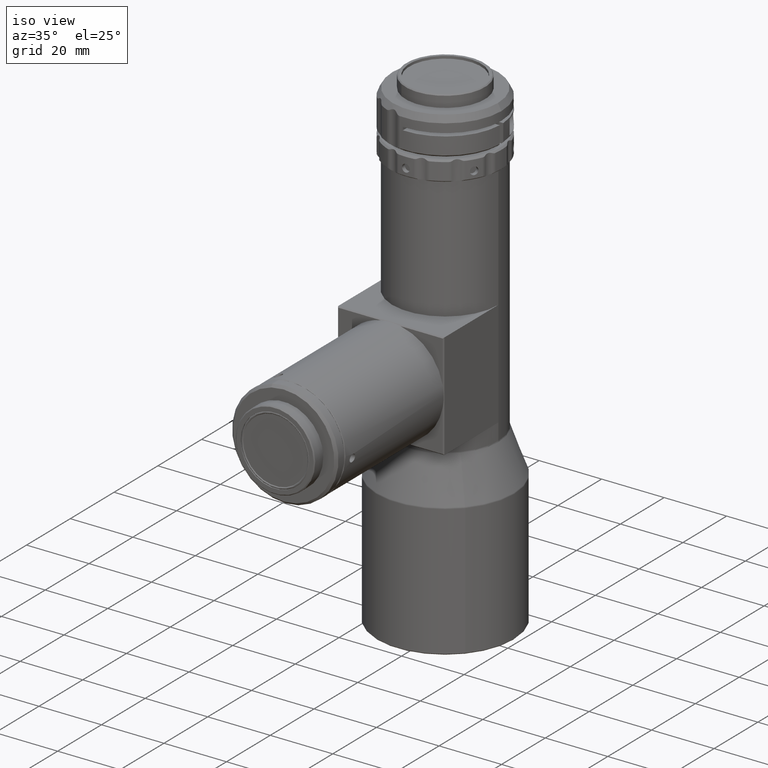
[diagram: clean part render]
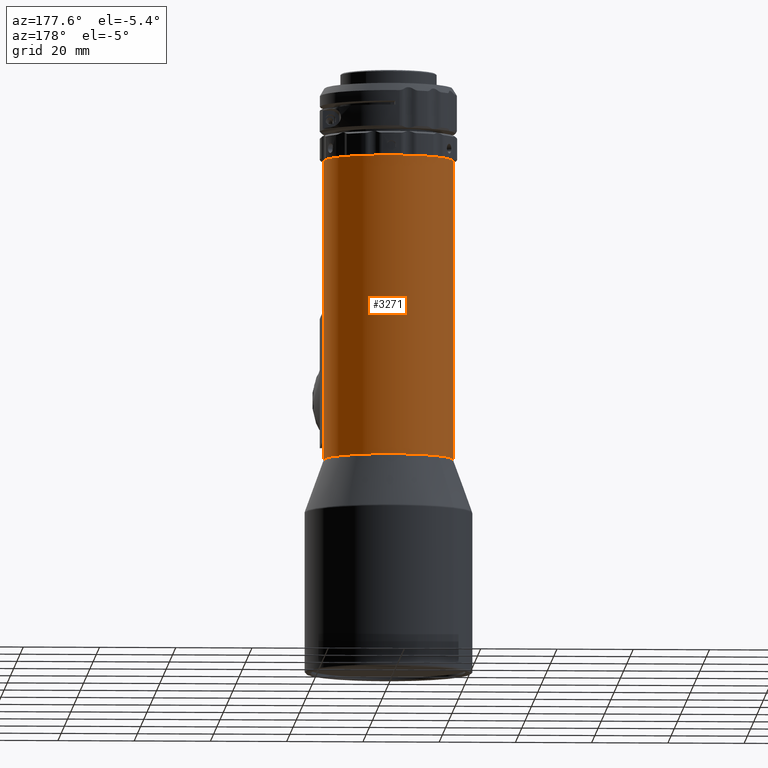
[diagram: tour spotlight — one face highlighted and labeled with its STEP entity id]
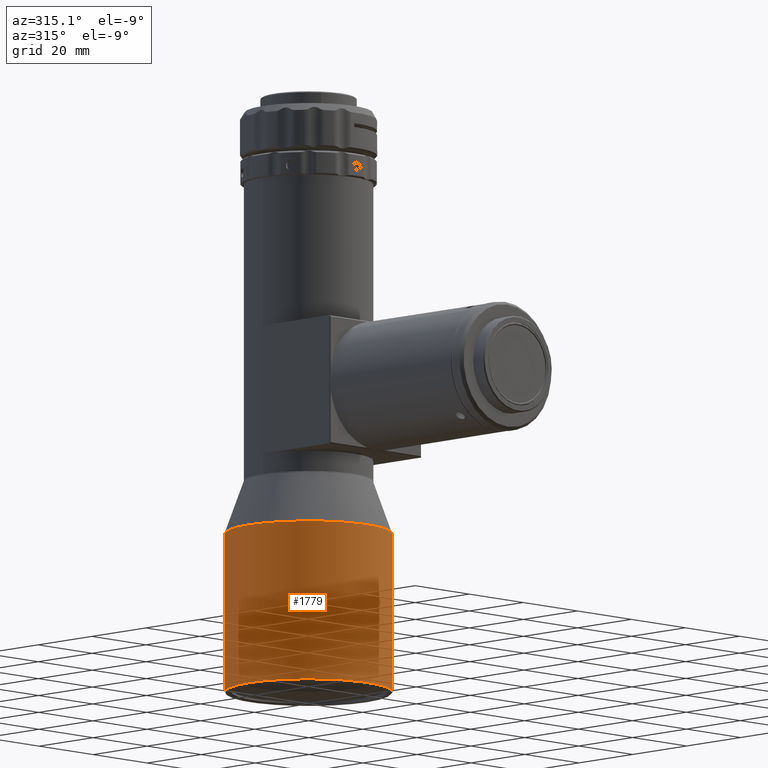
[diagram: tour spotlight — one face highlighted and labeled with its STEP entity id]
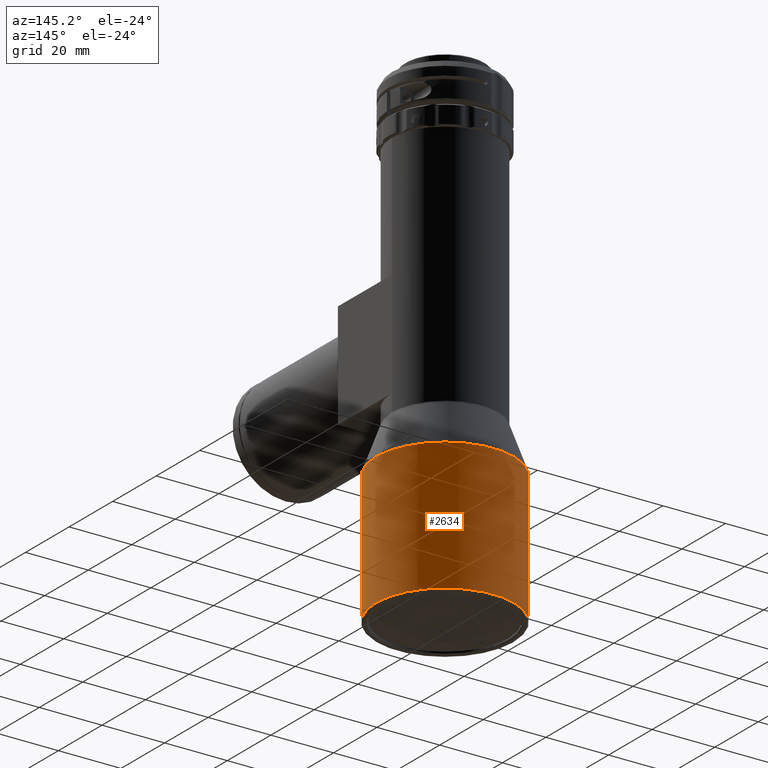
[diagram: tour spotlight — one face highlighted and labeled with its STEP entity id]
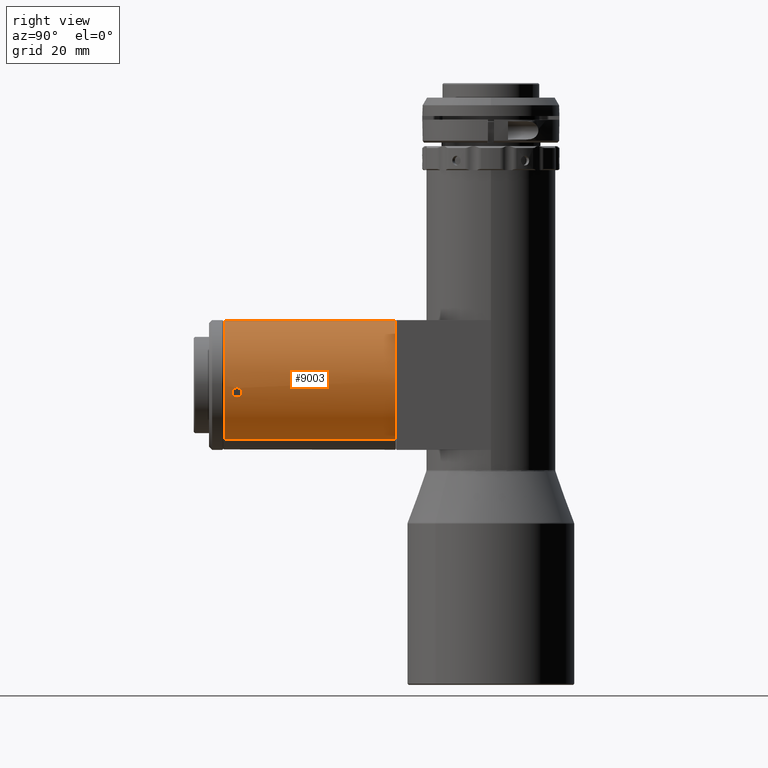
[diagram: tour spotlight — one face highlighted and labeled with its STEP entity id]
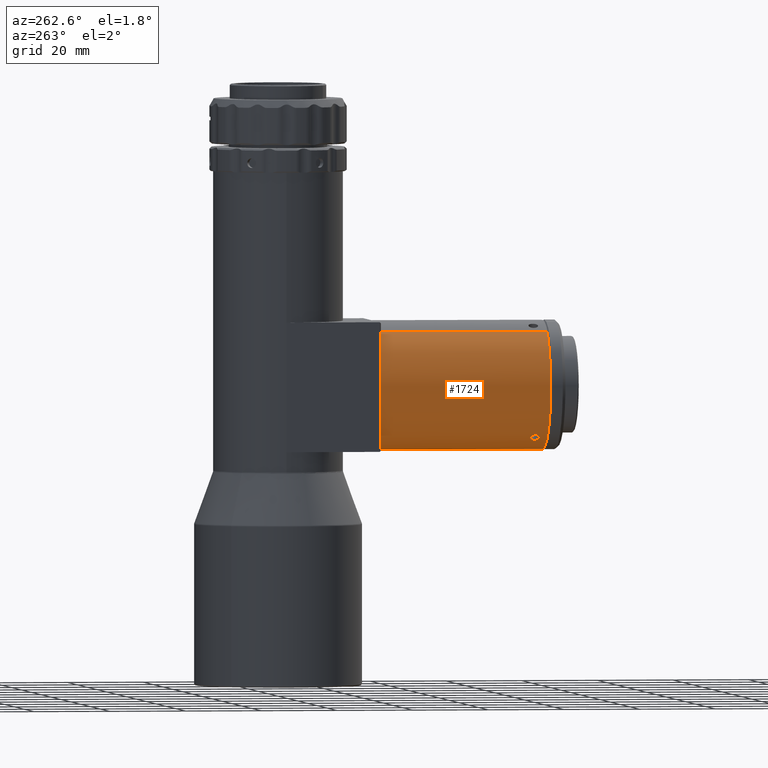
[diagram: tour spotlight — one face highlighted and labeled with its STEP entity id]
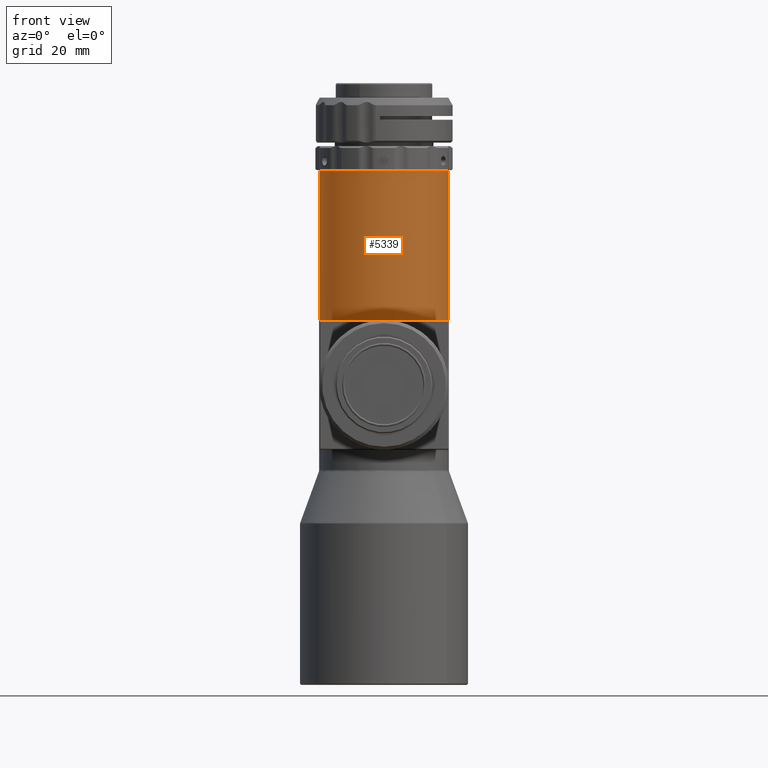
[diagram: tour spotlight — one face highlighted and labeled with its STEP entity id]
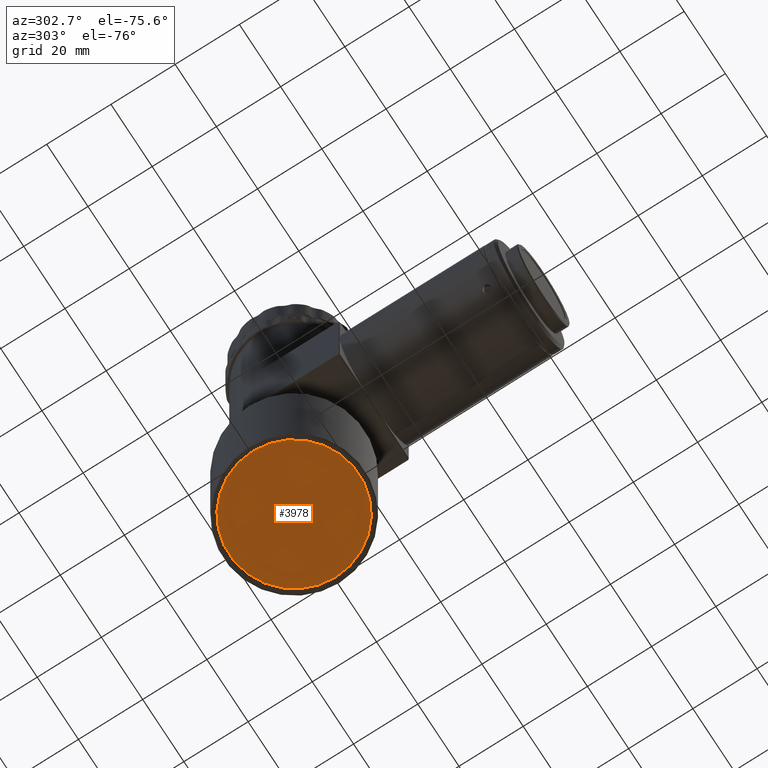
[diagram: tour spotlight — one face highlighted and labeled with its STEP entity id]
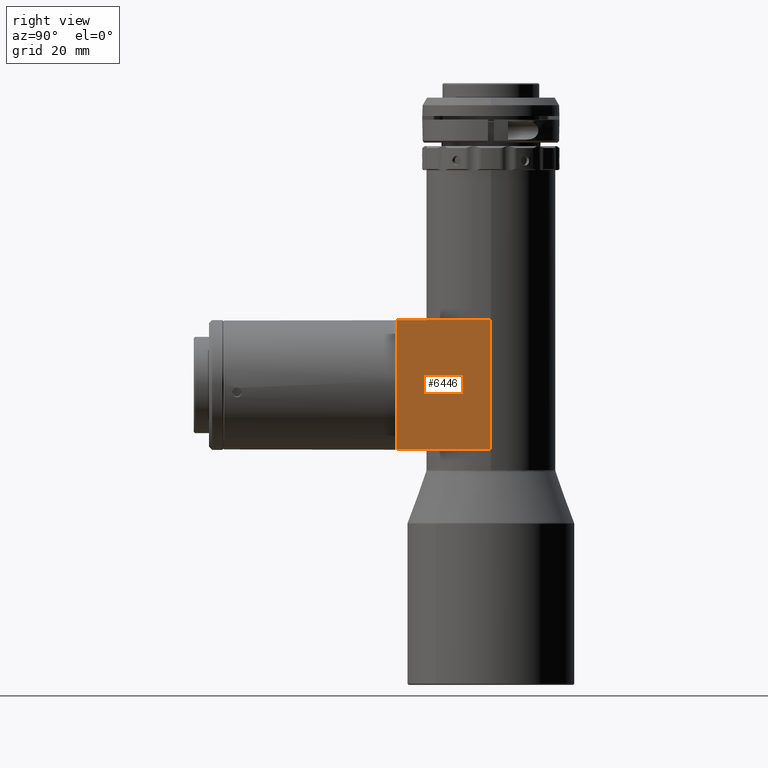
[diagram: tour spotlight — one face highlighted and labeled with its STEP entity id]
A machine part: a face-by-face anatomy tour. The part has 321 B-rep faces; the first image is the clean iso view, then the 8 largest visible faces are spotlighted one at a time (largest first), each with its STEP entity span.

Face 1 — auxiliary view, entity #3271. In plain terms, the highlighted cylindrical surface (partial cylindrical patch) has radius 17 mm, axis along (-0, -0, 1).
Definition (entity closure, byte-faithful):
#24 = EDGE_CURVE ( 'NONE', #4894, #7916, #8140, .T. ) ;
#355 = EDGE_LOOP ( 'NONE', ( #3946, #9817, #9813, #8989, #2940, #1556, #7168, #5770, #3960 ) ) ;
#481 = EDGE_CURVE ( 'NONE', #7916, #2822, #6725, .T. ) ;
#502 = AXIS2_PLACEMENT_3D ( 'NONE', #8543, #3647, #4858 ) ;
#627 = DIRECTION ( 'NONE',  ( -2.463942195970199000E-016, -2.161748815651534100E-017, 1.000000000000000000 ) ) ;
#698 = CARTESIAN_POINT ( 'NONE',  ( 17.00000000000001100, -5.409387497469982000E-014, 5.831308502710852400 ) ) ;
#915 = EDGE_CURVE ( 'NONE', #4560, #3793, #5262, .T. ) ;
#1032 = CARTESIAN_POINT ( 'NONE',  ( 17.00000000000000400, -5.691062134240554500E-014, 0.5076354834193150800 ) ) ;
#1037 = EDGE_CURVE ( 'NONE', #2822, #9901, #6526, .T. ) ;
#1357 = AXIS2_PLACEMENT_3D ( 'NONE', #5642, #6355, #2378 ) ;
#1372 = VECTOR ( 'NONE', #9187, 1000.000000000000000 ) ;
#1384 = DIRECTION ( 'NONE',  ( -2.463942195970199000E-016, -2.161748815651534400E-017, 1.000000000000000000 ) ) ;
#1509 = DIRECTION ( 'NONE',  ( 2.463942195970232000E-016, 2.161748815651629000E-017, -1.000000000000000000 ) ) ;
#1556 = ORIENTED_EDGE ( 'NONE', *, *, #9955, .T. ) ;
#1656 = DIRECTION ( 'NONE',  ( -0.7505243134106700500, 0.6608428368223734400, -1.721968156300507100E-016 ) ) ;
#1709 = VERTEX_POINT ( 'NONE', #5256 ) ;
#1988 = CARTESIAN_POINT ( 'NONE',  ( -16.99999999999998900, -5.212002588021099000E-014, 1.831308502710844700 ) ) ;
#2335 = CARTESIAN_POINT ( 'NONE',  ( -8.259574227217465400E-015, -5.473496346052257600E-014, 79.14130850271085600 ) ) ;
#2378 = DIRECTION ( 'NONE',  ( -0.7505243134106700500, 0.6608428368223734400, -1.721968156300507100E-016 ) ) ;
#2622 = CARTESIAN_POINT ( 'NONE',  ( 17.00000000000001100, -5.608930458062425400E-014, 1.831308502710853100 ) ) ;
#2656 = CIRCLE ( 'NONE', #6575, 17.00000000000000000 ) ;
#2689 = LINE ( 'NONE', #5386, #9587 ) ;
#2822 = VERTEX_POINT ( 'NONE', #5765 ) ;
#2940 = ORIENTED_EDGE ( 'NONE', *, *, #915, .F. ) ;
#3271 = ADVANCED_FACE ( 'NONE', ( #8676 ), #9435, .T. ) ;
#3407 = EDGE_CURVE ( 'NONE', #1709, #3999, #2656, .T. ) ;
#3647 = DIRECTION ( 'NONE',  ( -2.463942195970199000E-016, -2.161748815651534400E-017, 1.000000000000000000 ) ) ;
#3793 = VERTEX_POINT ( 'NONE', #7920 ) ;
#3794 = CARTESIAN_POINT ( 'NONE',  ( 17.00000000000001100, -5.608930458062425400E-014, 1.831308502710853100 ) ) ;
#3946 = ORIENTED_EDGE ( 'NONE', *, *, #24, .F. ) ;
#3960 = ORIENTED_EDGE ( 'NONE', *, *, #481, .F. ) ;
#3999 = VERTEX_POINT ( 'NONE', #5844 ) ;
#4431 = EDGE_CURVE ( 'NONE', #3999, #3793, #7874, .T. ) ;
#4560 = VERTEX_POINT ( 'NONE', #6087 ) ;
#4687 = VECTOR ( 'NONE', #9982, 1000.000000000000000 ) ;
#4819 = DIRECTION ( 'NONE',  ( -0.8614737347548578900, -0.5078021310781559700, 0.0000000000000000000 ) ) ;
#4858 = DIRECTION ( 'NONE',  ( -1.000000000000000000, 5.551115123125787600E-017, -2.423510738497010100E-016 ) ) ;
#4894 = VERTEX_POINT ( 'NONE', #1032 ) ;
#5192 = VECTOR ( 'NONE', #627, 1000.000000000000000 ) ;
#5256 = CARTESIAN_POINT ( 'NONE',  ( -12.75891332798138200, 11.23432822598029400, 0.5076354834193080900 ) ) ;
#5262 = LINE ( 'NONE', #10006, #5516 ) ;
#5386 = CARTESIAN_POINT ( 'NONE',  ( -16.99999999999998900, -5.212002588021099000E-014, 1.831308502710844700 ) ) ;
#5464 = AXIS2_PLACEMENT_3D ( 'NONE', #2335, #1509, #4819 ) ;
#5516 = VECTOR ( 'NONE', #5967, 1000.000000000000000 ) ;
#5642 = CARTESIAN_POINT ( 'NONE',  ( 1.111530827041812000E-014, -5.303510096532474700E-014, 0.5076354834193108600 ) ) ;
#5765 = CARTESIAN_POINT ( 'NONE',  ( 17.00000000000000000, -5.482886957202134400E-014, 39.83130850271085400 ) ) ;
#5770 = ORIENTED_EDGE ( 'NONE', *, *, #1037, .F. ) ;
#5844 = CARTESIAN_POINT ( 'NONE',  ( -16.99999999999998200, -5.294134264199226900E-014, 0.5076354834193066400 ) ) ;
#5967 = DIRECTION ( 'NONE',  ( 2.463942195970199000E-016, 2.161748815651534100E-017, -1.000000000000000000 ) ) ;
#6087 = CARTESIAN_POINT ( 'NONE',  ( -16.99999999999999600, -5.294149043015857200E-014, 39.83130850271084000 ) ) ;
#6355 = DIRECTION ( 'NONE',  ( -2.463942195970201000E-016, -2.161748815651538700E-017, 1.000000000000000000 ) ) ;
#6526 = LINE ( 'NONE', #3794, #9478 ) ;
#6575 = AXIS2_PLACEMENT_3D ( 'NONE', #9773, #9836, #1656 ) ;
#6725 = LINE ( 'NONE', #10193, #5192 ) ;
#7168 = ORIENTED_EDGE ( 'NONE', *, *, #7929, .T. ) ;
#7352 = EDGE_CURVE ( 'NONE', #4894, #1709, #9873, .T. ) ;
#7874 = LINE ( 'NONE', #1988, #1372 ) ;
#7916 = VERTEX_POINT ( 'NONE', #698 ) ;
#7920 = CARTESIAN_POINT ( 'NONE',  ( -16.99999999999998900, -5.220649583283705400E-014, 5.831308502710838200 ) ) ;
#7929 = EDGE_CURVE ( 'NONE', #9723, #9901, #8962, .T. ) ;
#8140 = LINE ( 'NONE', #2622, #4687 ) ;
#8195 = CARTESIAN_POINT ( 'NONE',  ( -17.00000000000000700, -5.294134264199226900E-014, 79.14130850271085600 ) ) ;
#8543 = CARTESIAN_POINT ( 'NONE',  ( 1.078916288982816200E-014, -5.306371545114237300E-014, 1.831308502710848900 ) ) ;
#8666 = DIRECTION ( 'NONE',  ( -2.463942195970199000E-016, -2.161748815651534400E-017, 1.000000000000000000 ) ) ;
#8676 = FACE_OUTER_BOUND ( 'NONE', #355, .T. ) ;
#8962 = CIRCLE ( 'NONE', #5464, 17.00000000000000000 ) ;
#8989 = ORIENTED_EDGE ( 'NONE', *, *, #4431, .T. ) ;
#9187 = DIRECTION ( 'NONE',  ( -2.463942195970199000E-016, -2.161748815651534400E-017, 1.000000000000000000 ) ) ;
#9435 = CYLINDRICAL_SURFACE ( 'NONE', #502, 17.00000000000000000 ) ;
#9478 = VECTOR ( 'NONE', #1384, 1000.000000000000000 ) ;
#9587 = VECTOR ( 'NONE', #8666, 1000.000000000000000 ) ;
#9723 = VERTEX_POINT ( 'NONE', #8195 ) ;
#9773 = CARTESIAN_POINT ( 'NONE',  ( 1.111530827041812000E-014, -5.303510096532474700E-014, 0.5076354834193108600 ) ) ;
#9813 = ORIENTED_EDGE ( 'NONE', *, *, #3407, .T. ) ;
#9817 = ORIENTED_EDGE ( 'NONE', *, *, #7352, .T. ) ;
#9836 = DIRECTION ( 'NONE',  ( -2.463942195970201000E-016, -2.161748815651538700E-017, 1.000000000000000000 ) ) ;
#9873 = CIRCLE ( 'NONE', #1357, 17.00000000000000000 ) ;
#9901 = VERTEX_POINT ( 'NONE', #10140 ) ;
#9955 = EDGE_CURVE ( 'NONE', #4560, #9723, #2689, .T. ) ;
#9982 = DIRECTION ( 'NONE',  ( -2.463942195970199000E-016, -2.161748815651534400E-017, 1.000000000000000000 ) ) ;
#10006 = CARTESIAN_POINT ( 'NONE',  ( -17.00000000000000000, -5.294149043015857200E-014, 39.83130850271084700 ) ) ;
#10140 = CARTESIAN_POINT ( 'NONE',  ( 16.99999999999999300, -5.691062134240554500E-014, 79.14130850271085600 ) ) ;
#10193 = CARTESIAN_POINT ( 'NONE',  ( 17.00000000000000000, -5.482886957202134400E-014, 39.83130850271085400 ) ) ;

Face 2 — auxiliary view, entity #1779. In plain terms, the highlighted cylindrical surface (partial cylindrical patch) has radius 22 mm, axis along (0, 0, -1).
Definition (entity closure, byte-faithful):
#68 = DIRECTION ( 'NONE',  ( 2.463942195970201000E-016, 2.161748815651538700E-017, -1.000000000000000000 ) ) ;
#285 = DIRECTION ( 'NONE',  ( 2.463942195970201000E-016, 2.161748815651538700E-017, -1.000000000000000000 ) ) ;
#1241 = DIRECTION ( 'NONE',  ( 2.463942195970201000E-016, 2.161748815651538700E-017, -1.000000000000000000 ) ) ;
#1542 = AXIS2_PLACEMENT_3D ( 'NONE', #2804, #1241, #5323 ) ;
#1688 = DIRECTION ( 'NONE',  ( 2.463942195970201000E-016, 2.161748815651538700E-017, -1.000000000000000000 ) ) ;
#1779 = ADVANCED_FACE ( 'NONE', ( #2677 ), #6767, .T. ) ;
#1798 = CARTESIAN_POINT ( 'NONE',  ( 16.51153489503477100, -14.53854241009226700, -55.76869149728914000 ) ) ;
#2050 = VERTEX_POINT ( 'NONE', #6664 ) ;
#2444 = CARTESIAN_POINT ( 'NONE',  ( -16.51153489503471800, 14.53854241009216400, -55.76869149728915400 ) ) ;
#2647 = ORIENTED_EDGE ( 'NONE', *, *, #6898, .F. ) ;
#2677 = FACE_OUTER_BOUND ( 'NONE', #5351, .T. ) ;
#2804 = CARTESIAN_POINT ( 'NONE',  ( 1.458701294116408300E-014, -5.273050966961369000E-014, -13.58240557527098200 ) ) ;
#3395 = EDGE_CURVE ( 'NONE', #2050, #7635, #10476, .T. ) ;
#3969 = VERTEX_POINT ( 'NONE', #9917 ) ;
#4128 = DIRECTION ( 'NONE',  ( -0.7505243134106701600, 0.6608428368223735500, -3.154042683594194600E-016 ) ) ;
#4944 = CARTESIAN_POINT ( 'NONE',  ( -16.51153489503472100, 14.53854241009216400, -13.58240557527098600 ) ) ;
#5323 = DIRECTION ( 'NONE',  ( 0.7505243134106701600, -0.6608428368223735500, 1.577021341797097300E-016 ) ) ;
#5351 = EDGE_LOOP ( 'NONE', ( #2647, #6933, #9247, #10473 ) ) ;
#5363 = AXIS2_PLACEMENT_3D ( 'NONE', #8356, #285, #6075 ) ;
#6075 = DIRECTION ( 'NONE',  ( -0.7505243134106701600, 0.6608428368223735500, -3.154042683594194600E-016 ) ) ;
#6197 = VECTOR ( 'NONE', #68, 1000.000000000000000 ) ;
#6453 = EDGE_CURVE ( 'NONE', #9050, #2050, #8871, .T. ) ;
#6645 = EDGE_CURVE ( 'NONE', #3969, #9050, #8369, .T. ) ;
#6664 = CARTESIAN_POINT ( 'NONE',  ( -16.51153489503472100, 14.53854241009217100, -55.46869149728915000 ) ) ;
#6767 = CYLINDRICAL_SURFACE ( 'NONE', #5363, 22.00000000000000000 ) ;
#6815 = VECTOR ( 'NONE', #1688, 1000.000000000000000 ) ;
#6898 = EDGE_CURVE ( 'NONE', #3969, #7635, #9243, .T. ) ;
#6933 = ORIENTED_EDGE ( 'NONE', *, *, #6645, .T. ) ;
#7128 = AXIS2_PLACEMENT_3D ( 'NONE', #8270, #7329, #4128 ) ;
#7329 = DIRECTION ( 'NONE',  ( -2.463942195970201000E-016, -2.161748815651539000E-017, 1.000000000000000000 ) ) ;
#7635 = VERTEX_POINT ( 'NONE', #10076 ) ;
#8270 = CARTESIAN_POINT ( 'NONE',  ( 2.490755167273740000E-014, -5.182503337977404500E-014, -55.46869149728914300 ) ) ;
#8356 = CARTESIAN_POINT ( 'NONE',  ( 2.498146993861650700E-014, -5.181854813332709500E-014, -55.76869149728914700 ) ) ;
#8369 = CIRCLE ( 'NONE', #1542, 22.00000000000000000 ) ;
#8871 = LINE ( 'NONE', #2444, #6197 ) ;
#9050 = VERTEX_POINT ( 'NONE', #4944 ) ;
#9243 = LINE ( 'NONE', #1798, #6815 ) ;
#9247 = ORIENTED_EDGE ( 'NONE', *, *, #6453, .T. ) ;
#9917 = CARTESIAN_POINT ( 'NONE',  ( 16.51153489503475700, -14.53854241009226200, -13.58240557527097900 ) ) ;
#10076 = CARTESIAN_POINT ( 'NONE',  ( 16.51153489503476700, -14.53854241009226900, -55.46869149728913600 ) ) ;
#10473 = ORIENTED_EDGE ( 'NONE', *, *, #3395, .T. ) ;
#10476 = CIRCLE ( 'NONE', #7128, 22.00000000000000000 ) ;

Face 3 — auxiliary view, entity #2634. In plain terms, the highlighted cylindrical surface (partial cylindrical patch) has radius 22 mm, axis along (0, 0, -1).
Definition (entity closure, byte-faithful):
#68 = DIRECTION ( 'NONE',  ( 2.463942195970201000E-016, 2.161748815651538700E-017, -1.000000000000000000 ) ) ;
#241 = DIRECTION ( 'NONE',  ( -2.463942195970201000E-016, -2.161748815651539000E-017, 1.000000000000000000 ) ) ;
#406 = CIRCLE ( 'NONE', #5887, 22.00000000000000000 ) ;
#1147 = EDGE_CURVE ( 'NONE', #7635, #2050, #6914, .T. ) ;
#1688 = DIRECTION ( 'NONE',  ( 2.463942195970201000E-016, 2.161748815651538700E-017, -1.000000000000000000 ) ) ;
#1716 = EDGE_LOOP ( 'NONE', ( #5538, #5861, #8576, #5536 ) ) ;
#1798 = CARTESIAN_POINT ( 'NONE',  ( 16.51153489503477100, -14.53854241009226700, -55.76869149728914000 ) ) ;
#2050 = VERTEX_POINT ( 'NONE', #6664 ) ;
#2444 = CARTESIAN_POINT ( 'NONE',  ( -16.51153489503471800, 14.53854241009216400, -55.76869149728915400 ) ) ;
#2634 = ADVANCED_FACE ( 'NONE', ( #7909 ), #5610, .T. ) ;
#2814 = DIRECTION ( 'NONE',  ( 2.463942195970201000E-016, 2.161748815651538700E-017, -1.000000000000000000 ) ) ;
#3453 = DIRECTION ( 'NONE',  ( 0.7505243134106701600, -0.6608428368223735500, 1.577021341797097300E-016 ) ) ;
#3969 = VERTEX_POINT ( 'NONE', #9917 ) ;
#4301 = CARTESIAN_POINT ( 'NONE',  ( 2.498146993861650700E-014, -5.181854813332709500E-014, -55.76869149728914700 ) ) ;
#4313 = DIRECTION ( 'NONE',  ( -0.7505243134106701600, 0.6608428368223735500, -3.154042683594194600E-016 ) ) ;
#4944 = CARTESIAN_POINT ( 'NONE',  ( -16.51153489503472100, 14.53854241009216400, -13.58240557527098600 ) ) ;
#5163 = CARTESIAN_POINT ( 'NONE',  ( 2.490755167273740000E-014, -5.182503337977404500E-014, -55.46869149728914300 ) ) ;
#5536 = ORIENTED_EDGE ( 'NONE', *, *, #6453, .F. ) ;
#5538 = ORIENTED_EDGE ( 'NONE', *, *, #9841, .T. ) ;
#5610 = CYLINDRICAL_SURFACE ( 'NONE', #10574, 22.00000000000000000 ) ;
#5861 = ORIENTED_EDGE ( 'NONE', *, *, #6898, .T. ) ;
#5887 = AXIS2_PLACEMENT_3D ( 'NONE', #9156, #8266, #3453 ) ;
#6197 = VECTOR ( 'NONE', #68, 1000.000000000000000 ) ;
#6453 = EDGE_CURVE ( 'NONE', #9050, #2050, #8871, .T. ) ;
#6664 = CARTESIAN_POINT ( 'NONE',  ( -16.51153489503472100, 14.53854241009217100, -55.46869149728915000 ) ) ;
#6815 = VECTOR ( 'NONE', #1688, 1000.000000000000000 ) ;
#6898 = EDGE_CURVE ( 'NONE', #3969, #7635, #9243, .T. ) ;
#6909 = AXIS2_PLACEMENT_3D ( 'NONE', #5163, #241, #4313 ) ;
#6914 = CIRCLE ( 'NONE', #6909, 22.00000000000000000 ) ;
#7635 = VERTEX_POINT ( 'NONE', #10076 ) ;
#7783 = DIRECTION ( 'NONE',  ( -0.7505243134106701600, 0.6608428368223735500, -3.154042683594194600E-016 ) ) ;
#7909 = FACE_OUTER_BOUND ( 'NONE', #1716, .T. ) ;
#8266 = DIRECTION ( 'NONE',  ( 2.463942195970201000E-016, 2.161748815651538700E-017, -1.000000000000000000 ) ) ;
#8576 = ORIENTED_EDGE ( 'NONE', *, *, #1147, .T. ) ;
#8871 = LINE ( 'NONE', #2444, #6197 ) ;
#9050 = VERTEX_POINT ( 'NONE', #4944 ) ;
#9156 = CARTESIAN_POINT ( 'NONE',  ( 1.458701294116408300E-014, -5.273050966961369000E-014, -13.58240557527098200 ) ) ;
#9243 = LINE ( 'NONE', #1798, #6815 ) ;
#9841 = EDGE_CURVE ( 'NONE', #9050, #3969, #406, .T. ) ;
#9917 = CARTESIAN_POINT ( 'NONE',  ( 16.51153489503475700, -14.53854241009226200, -13.58240557527097900 ) ) ;
#10076 = CARTESIAN_POINT ( 'NONE',  ( 16.51153489503476700, -14.53854241009226900, -55.46869149728913600 ) ) ;
#10574 = AXIS2_PLACEMENT_3D ( 'NONE', #4301, #2814, #7783 ) ;

Face 4 — right view, entity #9003. In plain terms, the highlighted cylindrical surface (partial cylindrical patch) has radius 17 mm, axis along (0, 1, 0).
Definition (entity closure, byte-faithful):
#61 = VERTEX_POINT ( 'NONE', #5081 ) ;
#119 = EDGE_LOOP ( 'NONE', ( #4271, #7839 ) ) ;
#131 = CARTESIAN_POINT ( 'NONE',  ( 16.70638819607796000, -66.88724907754081500, 19.68479391220255100 ) ) ;
#156 = CARTESIAN_POINT ( 'NONE',  ( 9.298050356267811600, -25.00000000000006400, 8.599433729080070400 ) ) ;
#181 = CARTESIAN_POINT ( 'NONE',  ( -6.610259663945258000, -67.80986712833797000, 38.49437628550460000 ) ) ;
#277 = ORIENTED_EDGE ( 'NONE', *, *, #7535, .T. ) ;
#300 = FACE_OUTER_BOUND ( 'NONE', #9082, .T. ) ;
#306 = ORIENTED_EDGE ( 'NONE', *, *, #6162, .T. ) ;
#333 = DIRECTION ( 'NONE',  ( -0.3813200971388669400, 0.0000000000000000000, 0.9244430666720394600 ) ) ;
#495 = CARTESIAN_POINT ( 'NONE',  ( 16.84874230584408000, -65.34290700073550800, 20.56359313367095300 ) ) ;
#506 = EDGE_CURVE ( 'NONE', #10035, #10239, #6195, .T. ) ;
#560 = CARTESIAN_POINT ( 'NONE',  ( -5.635415891612647800, -66.23530111707623300, 38.87008478325481100 ) ) ;
#587 = EDGE_CURVE ( 'NONE', #3510, #61, #842, .T. ) ;
#695 = EDGE_CURVE ( 'NONE', #61, #10440, #4916, .T. ) ;
#842 = CIRCLE ( 'NONE', #9303, 16.99999999999999600 ) ;
#975 = CARTESIAN_POINT ( 'NONE',  ( 16.69999999999999200, -25.00000000000006400, 26.01093112182781700 ) ) ;
#990 = CARTESIAN_POINT ( 'NONE',  ( 16.73041847570212300, -67.18621069564396500, 19.81549024153854800 ) ) ;
#995 = CARTESIAN_POINT ( 'NONE',  ( -6.913034569483211400, -67.81013206597549500, 38.36312031699392100 ) ) ;
#1026 = CARTESIAN_POINT ( 'NONE',  ( 16.97873217706420600, -67.18842958973007700, 21.97893129224931400 ) ) ;
#1036 = CARTESIAN_POINT ( 'NONE',  ( -7.667284804344669500, -67.32927336956854000, 38.00451169726910200 ) ) ;
#1063 = CARTESIAN_POINT ( 'NONE',  ( 16.86996727500278200, -67.81012624104320700, 20.72619861397164300 ) ) ;
#1103 = CARTESIAN_POINT ( 'NONE',  ( -7.891103138502412400, -66.72520273880543600, 37.88888105799072300 ) ) ;
#1113 = CARTESIAN_POINT ( 'NONE',  ( 4.024856619863625200E-015, -25.00000000000006400, 22.83130850271085100 ) ) ;
#1135 = EDGE_CURVE ( 'NONE', #7607, #1685, #5938, .T. ) ;
#1187 = CYLINDRICAL_SURFACE ( 'NONE', #8345, 17.00000000000000700 ) ;
#1240 = AXIS2_PLACEMENT_3D ( 'NONE', #1334, #7031, #2956 ) ;
#1282 = EDGE_LOOP ( 'NONE', ( #306, #6882 ) ) ;
#1329 = CARTESIAN_POINT ( 'NONE',  ( 16.74579032838370600, -65.79127889297788600, 19.90012601255035900 ) ) ;
#1334 = CARTESIAN_POINT ( 'NONE',  ( 9.705011626286861700E-016, -69.86000000000004200, 22.83130850271084700 ) ) ;
#1364 = CARTESIAN_POINT ( 'NONE',  ( 16.90685109718433700, -65.31811211008293600, 21.05231795853147900 ) ) ;
#1417 = CARTESIAN_POINT ( 'NONE',  ( -7.335264178290732900, -65.46756596947041400, 38.16807949922908000 ) ) ;
#1532 = EDGE_CURVE ( 'NONE', #10440, #6047, #10119, .T. ) ;
#1569 = VECTOR ( 'NONE', #6091, 1000.000000000000000 ) ;
#1685 = VERTEX_POINT ( 'NONE', #5902 ) ;
#1848 = CARTESIAN_POINT ( 'NONE',  ( 16.84871298146035600, -67.77702686672681400, 20.56337946571733300 ) ) ;
#1852 = CARTESIAN_POINT ( 'NONE',  ( -9.298050356267806300, -25.00000000000006400, 37.06318327634163300 ) ) ;
#1887 = CARTESIAN_POINT ( 'NONE',  ( -6.179537482520186300, -67.65157222471091800, 38.66911746849810100 ) ) ;
#1918 = CARTESIAN_POINT ( 'NONE',  ( 16.92373385707055500, -67.77720912274273200, 21.21571629976282100 ) ) ;
#1955 = VERTEX_POINT ( 'NONE', #9705 ) ;
#1959 = FACE_BOUND ( 'NONE', #1282, .T. ) ;
#2056 = CIRCLE ( 'NONE', #1240, 17.00000000000000000 ) ;
#2083 = DIRECTION ( 'NONE',  ( 5.551115123125796300E-017, 1.000000000000000000, 2.161748815651544600E-017 ) ) ;
#2117 = CARTESIAN_POINT ( 'NONE',  ( 16.97870437301096700, -65.93028094176665400, 21.97834486150810600 ) ) ;
#2144 = CARTESIAN_POINT ( 'NONE',  ( 16.70020887003316200, -66.56000000000004500, 19.65278310604246700 ) ) ;
#2145 = CARTESIAN_POINT ( 'NONE',  ( -9.298050356267804500, -69.86000000000004200, 37.06318327634163300 ) ) ;
#2231 = EDGE_CURVE ( 'NONE', #6047, #1955, #7146, .T. ) ;
#2238 = CARTESIAN_POINT ( 'NONE',  ( 16.97413152632130100, -65.79264904333199100, 21.88657367324482200 ) ) ;
#2624 = CARTESIAN_POINT ( 'NONE',  ( 16.75534801306475100, -67.38630004648155100, 19.95700055950026200 ) ) ;
#2692 = CARTESIAN_POINT ( 'NONE',  ( 16.90768622219609400, -67.80987302455524500, 21.05439260287407400 ) ) ;
#2734 = CARTESIAN_POINT ( 'NONE',  ( -5.746099081605682300, -67.18848731298314200, 38.83087850760355800 ) ) ;
#2855 = CARTESIAN_POINT ( 'NONE',  ( -9.298050356267808100, -59.42000000000005900, 37.06318327634163300 ) ) ;
#2883 = DIRECTION ( 'NONE',  ( -0.3813200971388669400, 0.0000000000000000000, 0.9244430666720394600 ) ) ;
#2953 = CARTESIAN_POINT ( 'NONE',  ( 4.024856619863625200E-015, -25.00000000000006400, 22.83130850271085100 ) ) ;
#2956 = DIRECTION ( 'NONE',  ( -0.1142332205671090600, 0.0000000000000000000, -0.9934539603418300900 ) ) ;
#2981 = CARTESIAN_POINT ( 'NONE',  ( -6.180830101355279100, -65.46761146697231500, 38.66861485859224200 ) ) ;
#3023 = CARTESIAN_POINT ( 'NONE',  ( 16.92287080643751600, -65.35002068960803000, 21.21178232284599800 ) ) ;
#3057 = CARTESIAN_POINT ( 'NONE',  ( 16.95953444050943300, -65.55925698791047300, 21.65323527407213400 ) ) ;
#3350 = CARTESIAN_POINT ( 'NONE',  ( 9.705011626286861700E-016, -69.86000000000004200, 22.83130850271084700 ) ) ;
#3438 = DIRECTION ( 'NONE',  ( 5.551115123125796300E-017, 1.000000000000000000, 2.161748815651544600E-017 ) ) ;
#3482 = CARTESIAN_POINT ( 'NONE',  ( 4.024856619863625200E-015, -25.00000000000006400, 22.83130850271085100 ) ) ;
#3510 = VERTEX_POINT ( 'NONE', #1852 ) ;
#3518 = ORIENTED_EDGE ( 'NONE', *, *, #9994, .T. ) ;
#3525 = CARTESIAN_POINT ( 'NONE',  ( 16.98579192145092900, -66.56000000000004500, 22.13641800689703800 ) ) ;
#3533 = CARTESIAN_POINT ( 'NONE',  ( -7.861629504641379100, -66.88932633474814800, 37.90442039259455200 ) ) ;
#3564 = CARTESIAN_POINT ( 'NONE',  ( -7.750383850343640200, -67.18999358454169600, 37.96192219434720300 ) ) ;
#3686 = CARTESIAN_POINT ( 'NONE',  ( 4.024856619863625200E-015, -25.00000000000006400, 22.83130850271085100 ) ) ;
#3706 = ORIENTED_EDGE ( 'NONE', *, *, #587, .F. ) ;
#3844 = CARTESIAN_POINT ( 'NONE',  ( 9.298050356267813400, -59.42000000000005900, 8.599433729080066900 ) ) ;
#3848 = ORIENTED_EDGE ( 'NONE', *, *, #1532, .F. ) ;
#3891 = CARTESIAN_POINT ( 'NONE',  ( -6.613322834023068500, -65.30994153790533100, 38.49306348977157900 ) ) ;
#3932 = CARTESIAN_POINT ( 'NONE',  ( 4.024856619863625200E-015, -25.00000000000006400, 22.83130850271085100 ) ) ;
#4060 = DIRECTION ( 'NONE',  ( 5.551115123125791300E-017, 1.000000000000000000, 2.161748815651541800E-017 ) ) ;
#4172 = CARTESIAN_POINT ( 'NONE',  ( 2.316411672129381900E-015, -59.42000000000005900, 22.83130850271084700 ) ) ;
#4271 = ORIENTED_EDGE ( 'NONE', *, *, #506, .T. ) ;
#4355 = CARTESIAN_POINT ( 'NONE',  ( -5.597420694919904300, -66.55999999999956200, 38.88337633100270100 ) ) ;
#4384 = CARTESIAN_POINT ( 'NONE',  ( 16.78405229769723300, -67.55924217949728900, 20.12780684126694900 ) ) ;
#4400 = CIRCLE ( 'NONE', #10466, 17.00000000000000000 ) ;
#4430 = CARTESIAN_POINT ( 'NONE',  ( -5.597420694927704300, -66.72315263635988500, 38.88337633099998700 ) ) ;
#4559 = EDGE_CURVE ( 'NONE', #1955, #6025, #5695, .T. ) ;
#4571 = CARTESIAN_POINT ( 'NONE',  ( -5.833130699479694300, -65.79262750143600200, 38.79965998680778200 ) ) ;
#4582 = CARTESIAN_POINT ( 'NONE',  ( 16.87001432123242500, -65.31006471618341900, 20.72673067664403100 ) ) ;
#4597 = CARTESIAN_POINT ( 'NONE',  ( -6.912636059572872900, -65.31005862309955000, 38.36327782052838100 ) ) ;
#4683 = CARTESIAN_POINT ( 'NONE',  ( 1.941964749640853400, -69.86000000000004200, 39.72002582852196900 ) ) ;
#4916 = CIRCLE ( 'NONE', #7656, 16.99999999999999600 ) ;
#4983 = DIRECTION ( 'NONE',  ( -0.1142332205671090600, 0.0000000000000000000, -0.9934539603418300900 ) ) ;
#4998 = AXIS2_PLACEMENT_3D ( 'NONE', #2953, #2083, #2883 ) ;
#5036 = DIRECTION ( 'NONE',  ( -0.3813200971388669400, 0.0000000000000000000, 0.9244430666720394600 ) ) ;
#5081 = CARTESIAN_POINT ( 'NONE',  ( -3.179622619116962800, -25.00000000000006400, 39.53130850271084300 ) ) ;
#5085 = CARTESIAN_POINT ( 'NONE',  ( 16.80593868779189400, -67.65232116570484800, 20.26556181399647400 ) ) ;
#5170 = CARTESIAN_POINT ( 'NONE',  ( -7.331801671205035100, -67.64539359583326900, 38.16914749740423900 ) ) ;
#5258 = DIRECTION ( 'NONE',  ( -0.3813200971388669400, 0.0000000000000000000, 0.9244430666720394600 ) ) ;
#5408 = CARTESIAN_POINT ( 'NONE',  ( 16.94970671618360900, -65.46763979262557600, 21.51585995512447300 ) ) ;
#5526 = CARTESIAN_POINT ( 'NONE',  ( -5.605165256013467700, -66.39553007084381900, 38.88068167743514200 ) ) ;
#5605 = B_SPLINE_CURVE_WITH_KNOTS ( 'NONE', 3,
 ( #4355, #4430, #8464, #2734, #7661, #9309, #1887, #10153, #181, #995, #8426, #5890, #5170, #6703, #9997, #1036, #3564, #3533, #1103, #5990 ),
 .UNSPECIFIED., .F., .F.,
 ( 4, 2, 2, 2, 2, 2, 2, 2, 2, 4 ),
 ( 0.003909388258064613700, 0.004397949155370875800, 0.004886510052677138000, 0.005375070949983400100, 0.005863631847289661400, 0.006352192744595923500, 0.006596473193249062900, 0.006840753641902201300, 0.007329314539208479000, 0.007817875436514756800 ),
 .UNSPECIFIED. ) ;
#5695 = CIRCLE ( 'NONE', #9406, 16.99999999999999600 ) ;
#5701 = DIRECTION ( 'NONE',  ( -0.5469441386039886100, 0.0000000000000000000, 0.8371691043312222700 ) ) ;
#5757 = VERTEX_POINT ( 'NONE', #4683 ) ;
#5786 = DIRECTION ( 'NONE',  ( 5.551115123125785200E-017, 1.000000000000000000, 2.161748815651539000E-017 ) ) ;
#5795 = CARTESIAN_POINT ( 'NONE',  ( 9.298050356267813400, -69.86000000000004200, 8.599433729080066900 ) ) ;
#5876 = CARTESIAN_POINT ( 'NONE',  ( 16.72351698876531900, -67.11443076893017700, 19.77762716978471900 ) ) ;
#5890 = CARTESIAN_POINT ( 'NONE',  ( -7.266919997080242100, -67.68374357465577900, 38.20003057156547800 ) ) ;
#5902 = CARTESIAN_POINT ( 'NONE',  ( 16.98579192145092900, -66.56000000000004500, 22.13641800689703800 ) ) ;
#5938 = B_SPLINE_CURVE_WITH_KNOTS ( 'NONE', 3,
 ( #9083, #9123, #131, #5876, #990, #6696, #2624, #4384, #5085, #1848, #1063, #2692, #1918, #10066, #5980, #7620, #1026, #5956, #6733, #3525 ),
 .UNSPECIFIED., .F., .F.,
 ( 4, 2, 2, 2, 2, 2, 2, 2, 2, 4 ),
 ( 0.005864622785134547500, 0.006353172221397229400, 0.006597446939528552000, 0.006841721657659873900, 0.007330271093922488900, 0.007818820530185103000, 0.008307369966447717200, 0.008795919402710333100, 0.009284468838972947300, 0.009773018275235561400 ),
 .UNSPECIFIED. ) ;
#5956 = CARTESIAN_POINT ( 'NONE',  ( 16.98453168383415600, -66.88760243524829700, 22.10358827472255800 ) ) ;
#5980 = CARTESIAN_POINT ( 'NONE',  ( 16.95968933837410800, -67.55856815516635500, 21.65562234051574800 ) ) ;
#5990 = CARTESIAN_POINT ( 'NONE',  ( -7.891103138502407100, -66.56000000000005900, 37.88888105799070900 ) ) ;
#6025 = VERTEX_POINT ( 'NONE', #156 ) ;
#6047 = VERTEX_POINT ( 'NONE', #975 ) ;
#6091 = DIRECTION ( 'NONE',  ( 5.551115123125785200E-017, 1.000000000000000000, 2.161748815651539000E-017 ) ) ;
#6156 = CARTESIAN_POINT ( 'NONE',  ( 16.98579192145092500, -66.39687291546559300, 22.13641800689703500 ) ) ;
#6162 = EDGE_CURVE ( 'NONE', #1685, #7607, #7449, .T. ) ;
#6195 = B_SPLINE_CURVE_WITH_KNOTS ( 'NONE', 3,
 ( #6233, #9452, #10361, #6207, #10438, #7121, #1417, #7058, #4597, #3891, #9551, #2981, #8673, #4571, #10397, #9589, #560, #5526, #7812, #7020 ),
 .UNSPECIFIED., .F., .F.,
 ( 4, 2, 2, 2, 2, 2, 2, 2, 2, 4 ),
 ( 0.0000000000000000000, 0.0004886735322580758500, 0.0009773470645161525600, 0.001466020596774229200, 0.001954694129032306000, 0.002443367661290382800, 0.002932041193548459200, 0.003420714725806536000, 0.003665051491935575100, 0.003909388258064613700 ),
 .UNSPECIFIED. ) ;
#6207 = CARTESIAN_POINT ( 'NONE',  ( -7.750453877515598200, -65.92986231273249600, 37.96188755291818500 ) ) ;
#6214 = CARTESIAN_POINT ( 'NONE',  ( 16.98454641274386700, -66.23300915201016900, 22.10389368799724600 ) ) ;
#6226 = DIRECTION ( 'NONE',  ( 5.551115123125785200E-017, 1.000000000000000000, 2.161748815651539000E-017 ) ) ;
#6233 = CARTESIAN_POINT ( 'NONE',  ( -7.891103138502407100, -66.56000000000005900, 37.88888105799070900 ) ) ;
#6357 = DIRECTION ( 'NONE',  ( 5.551115123125796300E-017, 1.000000000000000000, 2.161748815651544600E-017 ) ) ;
#6415 = ORIENTED_EDGE ( 'NONE', *, *, #695, .F. ) ;
#6503 = EDGE_CURVE ( 'NONE', #10239, #10035, #5605, .T. ) ;
#6696 = CARTESIAN_POINT ( 'NONE',  ( 16.74629151402090300, -67.32198423561388300, 19.90491435906463000 ) ) ;
#6703 = CARTESIAN_POINT ( 'NONE',  ( -7.454225148730157200, -67.55485075530745600, 38.11002403134939700 ) ) ;
#6733 = CARTESIAN_POINT ( 'NONE',  ( 16.98579192145092900, -66.72308181230511100, 22.13641800689704200 ) ) ;
#6777 = CARTESIAN_POINT ( 'NONE',  ( 16.70020887003316200, -66.56000000000004500, 19.65278310604246700 ) ) ;
#6882 = ORIENTED_EDGE ( 'NONE', *, *, #1135, .T. ) ;
#6924 = DIRECTION ( 'NONE',  ( 5.551115123125796300E-017, 1.000000000000000000, 2.161748815651544600E-017 ) ) ;
#7020 = CARTESIAN_POINT ( 'NONE',  ( -5.597420694919904300, -66.55999999999956200, 38.88337633100270100 ) ) ;
#7030 = CARTESIAN_POINT ( 'NONE',  ( 16.72921305159119100, -65.93001957050088900, 19.80849818748814100 ) ) ;
#7031 = DIRECTION ( 'NONE',  ( 5.551115123125791300E-017, 1.000000000000000000, 2.161748815651541800E-017 ) ) ;
#7058 = CARTESIAN_POINT ( 'NONE',  ( -7.062615424781326600, -65.34289296863501300, 38.29552877166069900 ) ) ;
#7101 = CARTESIAN_POINT ( 'NONE',  ( 16.80595269833132500, -65.46761864625042900, 20.26564987671057200 ) ) ;
#7121 = CARTESIAN_POINT ( 'NONE',  ( -7.460805545590594600, -65.56068369018812800, 38.10709697116245600 ) ) ;
#7146 = CIRCLE ( 'NONE', #8967, 16.99999999999999600 ) ;
#7150 = EDGE_CURVE ( 'NONE', #10549, #3510, #9629, .T. ) ;
#7449 = B_SPLINE_CURVE_WITH_KNOTS ( 'NONE', 3,
 ( #8625, #6156, #6214, #2117, #2238, #3057, #5408, #10342, #3023, #1364, #10314, #4582, #495, #7101, #7953, #1329, #7030, #8786, #8758, #2144 ),
 .UNSPECIFIED., .F., .F.,
 ( 4, 2, 2, 2, 2, 2, 2, 2, 2, 4 ),
 ( 0.001955142307231522300, 0.002443827366969395400, 0.002932512426707268400, 0.003421197486445141100, 0.003665540016314085600, 0.003909882546183029300, 0.004398567605920909700, 0.004887252665658788400, 0.005375937725396668000, 0.005864622785134547500 ),
 .UNSPECIFIED. ) ;
#7535 = EDGE_CURVE ( 'NONE', #5757, #8584, #4400, .T. ) ;
#7607 = VERTEX_POINT ( 'NONE', #6777 ) ;
#7620 = CARTESIAN_POINT ( 'NONE',  ( 16.97407925785157100, -67.32788271888478000, 21.88582780258491000 ) ) ;
#7656 = AXIS2_PLACEMENT_3D ( 'NONE', #3932, #6357, #9610 ) ;
#7661 = CARTESIAN_POINT ( 'NONE',  ( -5.833870027650995400, -67.32795608350835400, 38.79937839976738400 ) ) ;
#7762 = ORIENTED_EDGE ( 'NONE', *, *, #10555, .T. ) ;
#7812 = CARTESIAN_POINT ( 'NONE',  ( -5.597420694927891700, -66.47840487485986200, 38.88337633099993000 ) ) ;
#7839 = ORIENTED_EDGE ( 'NONE', *, *, #6503, .T. ) ;
#7947 = FACE_BOUND ( 'NONE', #119, .T. ) ;
#7953 = CARTESIAN_POINT ( 'NONE',  ( 16.78405051300388700, -65.56077429170338200, 20.12779728768941500 ) ) ;
#8072 = CARTESIAN_POINT ( 'NONE',  ( -7.891103138502407100, -66.56000000000005900, 37.88888105799070900 ) ) ;
#8111 = CARTESIAN_POINT ( 'NONE',  ( -5.597420694919904300, -66.55999999999956200, 38.88337633100270100 ) ) ;
#8345 = AXIS2_PLACEMENT_3D ( 'NONE', #4172, #5786, #5701 ) ;
#8426 = CARTESIAN_POINT ( 'NONE',  ( -7.060935957630676700, -67.77775797637166000, 38.29630641725619700 ) ) ;
#8452 = VECTOR ( 'NONE', #6226, 1000.000000000000000 ) ;
#8464 = CARTESIAN_POINT ( 'NONE',  ( -5.628471456956157600, -66.88762059857018000, 38.87263650432350900 ) ) ;
#8584 = VERTEX_POINT ( 'NONE', #5795 ) ;
#8625 = CARTESIAN_POINT ( 'NONE',  ( 16.98579192145092900, -66.56000000000004500, 22.13641800689703800 ) ) ;
#8673 = CARTESIAN_POINT ( 'NONE',  ( -6.052158642226723700, -65.55925858801504100, 38.71793931752471000 ) ) ;
#8706 = LINE ( 'NONE', #3844, #8452 ) ;
#8758 = CARTESIAN_POINT ( 'NONE',  ( 16.70020887003315500, -66.39493575984273800, 19.65278310604246300 ) ) ;
#8786 = CARTESIAN_POINT ( 'NONE',  ( 16.70640089366337500, -66.23258445589534900, 19.68486277657011400 ) ) ;
#8967 = AXIS2_PLACEMENT_3D ( 'NONE', #1113, #9246, #333 ) ;
#9003 = ADVANCED_FACE ( 'NONE', ( #1959, #7947, #300 ), #1187, .T. ) ;
#9033 = ORIENTED_EDGE ( 'NONE', *, *, #2231, .F. ) ;
#9082 = EDGE_LOOP ( 'NONE', ( #277, #3518, #9822, #9033, #3848, #6415, #3706, #9179, #7762 ) ) ;
#9083 = CARTESIAN_POINT ( 'NONE',  ( 16.70020887003316200, -66.56000000000004500, 19.65278310604246700 ) ) ;
#9123 = CARTESIAN_POINT ( 'NONE',  ( 16.70020887003316200, -66.72501843031430700, 19.65278310604246300 ) ) ;
#9179 = ORIENTED_EDGE ( 'NONE', *, *, #7150, .F. ) ;
#9246 = DIRECTION ( 'NONE',  ( 5.551115123125796300E-017, 1.000000000000000000, 2.161748815651544600E-017 ) ) ;
#9303 = AXIS2_PLACEMENT_3D ( 'NONE', #3482, #3438, #5036 ) ;
#9309 = CARTESIAN_POINT ( 'NONE',  ( -6.049938888087517300, -67.55857907601713900, 38.71877322138809800 ) ) ;
#9406 = AXIS2_PLACEMENT_3D ( 'NONE', #3686, #6924, #5258 ) ;
#9452 = CARTESIAN_POINT ( 'NONE',  ( -7.891103138502412400, -66.39475917463761300, 37.88888105799072300 ) ) ;
#9551 = CARTESIAN_POINT ( 'NONE',  ( -6.461987304176722600, -65.34233687403198600, 38.55599143854517100 ) ) ;
#9589 = CARTESIAN_POINT ( 'NONE',  ( -5.657775337289556300, -66.15737053436893700, 38.86223382500726600 ) ) ;
#9610 = DIRECTION ( 'NONE',  ( -0.3813200971388669400, 0.0000000000000000000, 0.9244430666720394600 ) ) ;
#9629 = LINE ( 'NONE', #2855, #1569 ) ;
#9705 = CARTESIAN_POINT ( 'NONE',  ( 16.69999999999999600, -25.00000000000006400, 19.65168588359389500 ) ) ;
#9822 = ORIENTED_EDGE ( 'NONE', *, *, #4559, .F. ) ;
#9994 = EDGE_CURVE ( 'NONE', #8584, #6025, #8706, .T. ) ;
#9997 = CARTESIAN_POINT ( 'NONE',  ( -7.512062931632253400, -67.50211911586397700, 38.08162811820640300 ) ) ;
#10035 = VERTEX_POINT ( 'NONE', #8072 ) ;
#10066 = CARTESIAN_POINT ( 'NONE',  ( 16.94981549797190100, -67.65152041907718700, 21.51728399156413800 ) ) ;
#10119 = CIRCLE ( 'NONE', #4998, 16.99999999999999600 ) ;
#10153 = CARTESIAN_POINT ( 'NONE',  ( -6.460355380702616800, -67.77717386287450600, 38.55666015822780700 ) ) ;
#10239 = VERTEX_POINT ( 'NONE', #8111 ) ;
#10243 = CARTESIAN_POINT ( 'NONE',  ( 3.179622619116961900, -25.00000000000006400, 39.53130850271084300 ) ) ;
#10314 = CARTESIAN_POINT ( 'NONE',  ( 16.89798400591007900, -65.30996778890008200, 20.96991271133632400 ) ) ;
#10342 = CARTESIAN_POINT ( 'NONE',  ( 16.93009971855826400, -65.37362859457343200, 21.28940572329501900 ) ) ;
#10361 = CARTESIAN_POINT ( 'NONE',  ( -7.862224636396386600, -66.23261750260239500, 37.90411121053237800 ) ) ;
#10397 = CARTESIAN_POINT ( 'NONE',  ( -5.746659546746226300, -65.93019088277063100, 38.83067904904596900 ) ) ;
#10438 = CARTESIAN_POINT ( 'NONE',  ( -7.667620043806417500, -65.79122045905276700, 38.00434167297091600 ) ) ;
#10440 = VERTEX_POINT ( 'NONE', #10243 ) ;
#10466 = AXIS2_PLACEMENT_3D ( 'NONE', #3350, #4060, #4983 ) ;
#10549 = VERTEX_POINT ( 'NONE', #2145 ) ;
#10555 = EDGE_CURVE ( 'NONE', #10549, #5757, #2056, .T. ) ;

Face 5 — auxiliary view, entity #1724. In plain terms, the highlighted cylindrical surface (partial cylindrical patch) has radius 17 mm, axis along (0, 1, 0).
Definition (entity closure, byte-faithful):
#102 = CARTESIAN_POINT ( 'NONE',  ( -9.994761970243951400, -65.31005862309956500, 9.078805409095567200 ) ) ;
#156 = CARTESIAN_POINT ( 'NONE',  ( 9.298050356267811600, -25.00000000000006400, 8.599433729080070400 ) ) ;
#278 = CARTESIAN_POINT ( 'NONE',  ( 3.179622619116971200, -25.00000000000006400, 6.131308502710859400 ) ) ;
#375 = DIRECTION ( 'NONE',  ( 5.551115123125791300E-017, 1.000000000000000000, 2.161748815651541800E-017 ) ) ;
#412 = CARTESIAN_POINT ( 'NONE',  ( -10.91243269204697000, -65.79262750143597300, 9.795493391318023800 ) ) ;
#436 = DIRECTION ( 'NONE',  ( 5.551115123125785200E-017, 1.000000000000000000, 2.161748815651539000E-017 ) ) ;
#707 = CARTESIAN_POINT ( 'NONE',  ( -11.10278817511164300, -66.55999999999954800, 9.957766071095486300 ) ) ;
#751 = CARTESIAN_POINT ( 'NONE',  ( -9.614401205863755400, -65.46756596947040000, 8.810397882581925800 ) ) ;
#793 = CARTESIAN_POINT ( 'NONE',  ( -9.451132737035090200, -67.50211911586396200, 8.700511361342087500 ) ) ;
#830 = CARTESIAN_POINT ( 'NONE',  ( 9.705011626286861700E-016, -69.86000000000004200, 22.83130850271084700 ) ) ;
#835 = CARTESIAN_POINT ( 'NONE',  ( -9.617057372957473800, -67.64539359583324100, 8.812862502591352500 ) ) ;
#900 = CARTESIAN_POINT ( 'NONE',  ( -9.504643210631636300, -67.55485075530744200, 8.736402394062373800 ) ) ;
#1095 = CARTESIAN_POINT ( 'NONE',  ( 9.705011626286861700E-016, -69.86000000000004200, 22.83130850271084700 ) ) ;
#1176 = EDGE_LOOP ( 'NONE', ( #9084, #9507, #7554, #1315, #6058, #5476, #7148, #2028, #8726 ) ) ;
#1186 = CARTESIAN_POINT ( 'NONE',  ( -16.69999999999998500, -25.00000000000006400, 19.65168588359388500 ) ) ;
#1269 = AXIS2_PLACEMENT_3D ( 'NONE', #2991, #8720, #3824 ) ;
#1293 = CARTESIAN_POINT ( 'NONE',  ( 4.024856619863625200E-015, -25.00000000000006400, 22.83130850271085100 ) ) ;
#1315 = ORIENTED_EDGE ( 'NONE', *, *, #7150, .T. ) ;
#1569 = VECTOR ( 'NONE', #6091, 1000.000000000000000 ) ;
#1572 = CARTESIAN_POINT ( 'NONE',  ( -10.25948476912431000, -67.80986712833798400, 9.275121816725748800 ) ) ;
#1724 = ADVANCED_FACE ( 'NONE', ( #2052, #5380 ), #8926, .T. ) ;
#1852 = CARTESIAN_POINT ( 'NONE',  ( -9.298050356267806300, -25.00000000000006400, 37.06318327634163300 ) ) ;
#1978 = CARTESIAN_POINT ( 'NONE',  ( 4.024856619863625200E-015, -25.00000000000006400, 22.83130850271085100 ) ) ;
#2028 = ORIENTED_EDGE ( 'NONE', *, *, #10526, .F. ) ;
#2052 = FACE_OUTER_BOUND ( 'NONE', #1176, .T. ) ;
#2145 = CARTESIAN_POINT ( 'NONE',  ( -9.298050356267804500, -69.86000000000004200, 37.06318327634163300 ) ) ;
#2167 = CARTESIAN_POINT ( 'NONE',  ( -11.09658225612095200, -66.39553007084379000, 9.952406411231081100 ) ) ;
#2255 = CARTESIAN_POINT ( 'NONE',  ( -10.38698123679977700, -65.34233687403195700, 9.372721870444078000 ) ) ;
#2579 = CIRCLE ( 'NONE', #3822, 17.00000000000000000 ) ;
#2653 = ORIENTED_EDGE ( 'NONE', *, *, #9471, .T. ) ;
#2855 = CARTESIAN_POINT ( 'NONE',  ( -9.298050356267808100, -59.42000000000005900, 37.06318327634163300 ) ) ;
#2900 = VERTEX_POINT ( 'NONE', #707 ) ;
#2960 = CARTESIAN_POINT ( 'NONE',  ( -11.05430090663510300, -66.15737053436896500, 9.916068670564765600 ) ) ;
#2991 = CARTESIAN_POINT ( 'NONE',  ( 4.024856619863625200E-015, -25.00000000000006400, 22.83130850271085100 ) ) ;
#3113 = CIRCLE ( 'NONE', #1269, 16.99999999999999600 ) ;
#3323 = CARTESIAN_POINT ( 'NONE',  ( -10.91181916643097500, -67.32795608350835400, 9.794993907860135400 ) ) ;
#3364 = CARTESIAN_POINT ( 'NONE',  ( -9.094688782948452400, -66.56000000000004500, 8.468626443244662700 ) ) ;
#3380 = CIRCLE ( 'NONE', #8398, 16.99999999999999600 ) ;
#3510 = VERTEX_POINT ( 'NONE', #1852 ) ;
#3551 = CARTESIAN_POINT ( 'NONE',  ( -16.69999999999998500, -25.00000000000006400, 26.01093112182780600 ) ) ;
#3822 = AXIS2_PLACEMENT_3D ( 'NONE', #1095, #375, #5954 ) ;
#3824 = DIRECTION ( 'NONE',  ( -0.3813200971388669400, 0.0000000000000000000, 0.9244430666720394600 ) ) ;
#3844 = CARTESIAN_POINT ( 'NONE',  ( 9.298050356267813400, -59.42000000000005900, 8.599433729080066900 ) ) ;
#3858 = CARTESIAN_POINT ( 'NONE',  ( -11.10278817511164300, -66.55999999999954800, 9.957766071095486300 ) ) ;
#4048 = CARTESIAN_POINT ( 'NONE',  ( -10.62509458103233600, -65.46761146697230100, 9.559899440520892400 ) ) ;
#4070 = CARTESIAN_POINT ( 'NONE',  ( -9.994426313226751900, -67.81013206597550900, 9.078539041156782100 ) ) ;
#4184 = CARTESIAN_POINT ( 'NONE',  ( -9.306422156005902800, -65.79122045905275200, 8.604438173077655300 ) ) ;
#4308 = CARTESIAN_POINT ( 'NONE',  ( -10.73214654506005900, -65.55925858801502700, 9.646669963401988600 ) ) ;
#4312 = CARTESIAN_POINT ( 'NONE',  ( -11.10278817511164300, -66.55999999999954800, 9.957766071095486300 ) ) ;
#4442 = CARTESIAN_POINT ( 'NONE',  ( -1.941964749640853900, -69.86000000000004200, 5.942591176899731500 ) ) ;
#4518 = DIRECTION ( 'NONE',  ( -0.3813200971388669400, 0.0000000000000000000, 0.9244430666720394600 ) ) ;
#4539 = AXIS2_PLACEMENT_3D ( 'NONE', #7723, #8552, #4518 ) ;
#4654 = VERTEX_POINT ( 'NONE', #4442 ) ;
#4702 = DIRECTION ( 'NONE',  ( 5.551115123125796300E-017, 1.000000000000000000, 2.161748815651544600E-017 ) ) ;
#4849 = CARTESIAN_POINT ( 'NONE',  ( -9.094688782948452400, -66.72520273880537900, 8.468626443244662700 ) ) ;
#4887 = CARTESIAN_POINT ( 'NONE',  ( -9.122883058403797200, -66.88932633474813400, 8.486381691608246000 ) ) ;
#4918 = CARTESIAN_POINT ( 'NONE',  ( -10.73397860405967000, -67.55857907601711100, 9.648175374945001400 ) ) ;
#4954 = DIRECTION ( 'NONE',  ( -0.1142332205671090600, 0.0000000000000000000, -0.9934539603418300900 ) ) ;
#5159 = B_SPLINE_CURVE_WITH_KNOTS ( 'NONE', 3,
 ( #3858, #8112, #9789, #7349, #3323, #4918, #6570, #9026, #1572, #4070, #7284, #8182, #835, #900, #793, #8997, #9759, #4887, #4849, #3364 ),
 .UNSPECIFIED., .F., .F.,
 ( 4, 2, 2, 2, 2, 2, 2, 2, 2, 4 ),
 ( 0.003909388258064645800, 0.004397949155370931400, 0.004886510052677216900, 0.005375070949983502500, 0.005863631847289788000, 0.006352192744596073600, 0.006596473193249208600, 0.006840753641902342700, 0.007329314539208580500, 0.007817875436514819300 ),
 .UNSPECIFIED. ) ;
#5160 = CARTESIAN_POINT ( 'NONE',  ( -11.10278817510523700, -66.47840487485983400, 9.957766071089958300 ) ) ;
#5248 = AXIS2_PLACEMENT_3D ( 'NONE', #830, #8993, #4954 ) ;
#5259 = DIRECTION ( 'NONE',  ( -0.3813200971388669400, 0.0000000000000000000, 0.9244430666720394600 ) ) ;
#5373 = DIRECTION ( 'NONE',  ( 5.551115123125796300E-017, 1.000000000000000000, 2.161748815651544600E-017 ) ) ;
#5380 = FACE_BOUND ( 'NONE', #8196, .T. ) ;
#5474 = VERTEX_POINT ( 'NONE', #3551 ) ;
#5476 = ORIENTED_EDGE ( 'NONE', *, *, #6121, .F. ) ;
#5504 = DIRECTION ( 'NONE',  ( -0.3813200971388669400, 0.0000000000000000000, 0.9244430666720394600 ) ) ;
#5795 = CARTESIAN_POINT ( 'NONE',  ( 9.298050356267813400, -69.86000000000004200, 8.599433729080066900 ) ) ;
#5816 = EDGE_CURVE ( 'NONE', #4654, #10549, #10190, .T. ) ;
#5954 = DIRECTION ( 'NONE',  ( -0.1142332205671090600, 0.0000000000000000000, -0.9934539603418300900 ) ) ;
#6025 = VERTEX_POINT ( 'NONE', #156 ) ;
#6058 = ORIENTED_EDGE ( 'NONE', *, *, #6193, .F. ) ;
#6091 = DIRECTION ( 'NONE',  ( 5.551115123125785200E-017, 1.000000000000000000, 2.161748815651539000E-017 ) ) ;
#6121 = EDGE_CURVE ( 'NONE', #6143, #5474, #3380, .T. ) ;
#6143 = VERTEX_POINT ( 'NONE', #1186 ) ;
#6193 = EDGE_CURVE ( 'NONE', #5474, #3510, #3113, .T. ) ;
#6225 = AXIS2_PLACEMENT_3D ( 'NONE', #1293, #5373, #6995 ) ;
#6226 = DIRECTION ( 'NONE',  ( 5.551115123125785200E-017, 1.000000000000000000, 2.161748815651539000E-017 ) ) ;
#6396 = CIRCLE ( 'NONE', #4539, 16.99999999999999600 ) ;
#6468 = CARTESIAN_POINT ( 'NONE',  ( -9.861099890238067500, -65.34289296863502700, 8.982793993215427300 ) ) ;
#6498 = CARTESIAN_POINT ( 'NONE',  ( -3.179622619116953000, -25.00000000000006400, 6.131308502710857600 ) ) ;
#6563 = CARTESIAN_POINT ( 'NONE',  ( -11.07227975875998500, -66.23530111707621900, 9.931507039411728900 ) ) ;
#6570 = CARTESIAN_POINT ( 'NONE',  ( -10.62617616339656800, -67.65157222471094700, 9.560767576316555600 ) ) ;
#6995 = DIRECTION ( 'NONE',  ( -0.3813200971388669400, 0.0000000000000000000, 0.9244430666720394600 ) ) ;
#7148 = ORIENTED_EDGE ( 'NONE', *, *, #10485, .F. ) ;
#7150 = EDGE_CURVE ( 'NONE', #10549, #3510, #9629, .T. ) ;
#7284 = CARTESIAN_POINT ( 'NONE',  ( -9.862613084654249500, -67.77775797637166000, 8.983859631634961900 ) ) ;
#7349 = CARTESIAN_POINT ( 'NONE',  ( -10.98298453306171800, -67.18848731298315600, 9.855255722931479700 ) ) ;
#7419 = CARTESIAN_POINT ( 'NONE',  ( -9.094688782948448800, -66.39475917463757100, 8.468626443244662700 ) ) ;
#7554 = ORIENTED_EDGE ( 'NONE', *, *, #5816, .T. ) ;
#7565 = CARTESIAN_POINT ( 'NONE',  ( 2.316411672129381900E-015, -59.42000000000005900, 22.83130850271084700 ) ) ;
#7658 = CIRCLE ( 'NONE', #6225, 16.99999999999999600 ) ;
#7723 = CARTESIAN_POINT ( 'NONE',  ( 4.024856619863625200E-015, -25.00000000000006400, 22.83130850271085100 ) ) ;
#7750 = AXIS2_PLACEMENT_3D ( 'NONE', #7565, #436, #9700 ) ;
#8112 = CARTESIAN_POINT ( 'NONE',  ( -11.10278817510538700, -66.72315263635984200, 9.957766071090089700 ) ) ;
#8114 = EDGE_CURVE ( 'NONE', #8584, #4654, #2579, .T. ) ;
#8182 = CARTESIAN_POINT ( 'NONE',  ( -9.676243736790452100, -67.68374357465580700, 8.853610143542873300 ) ) ;
#8196 = EDGE_LOOP ( 'NONE', ( #2653, #8222 ) ) ;
#8222 = ORIENTED_EDGE ( 'NONE', *, *, #9397, .T. ) ;
#8253 = CARTESIAN_POINT ( 'NONE',  ( -9.122317733006058300, -66.23261750260238000, 8.486020883420897200 ) ) ;
#8337 = CARTESIAN_POINT ( 'NONE',  ( -10.98253156431356100, -65.93019088277063100, 9.854870075160642200 ) ) ;
#8398 = AXIS2_PLACEMENT_3D ( 'NONE', #1978, #10166, #5259 ) ;
#8452 = VECTOR ( 'NONE', #6226, 1000.000000000000000 ) ;
#8552 = DIRECTION ( 'NONE',  ( 5.551115123125796300E-017, 1.000000000000000000, 2.161748815651544600E-017 ) ) ;
#8584 = VERTEX_POINT ( 'NONE', #5795 ) ;
#8706 = LINE ( 'NONE', #3844, #8452 ) ;
#8715 = VERTEX_POINT ( 'NONE', #10205 ) ;
#8720 = DIRECTION ( 'NONE',  ( 5.551115123125796300E-017, 1.000000000000000000, 2.161748815651544600E-017 ) ) ;
#8726 = ORIENTED_EDGE ( 'NONE', *, *, #10545, .F. ) ;
#8926 = CYLINDRICAL_SURFACE ( 'NONE', #7750, 17.00000000000000700 ) ;
#8927 = CIRCLE ( 'NONE', #9647, 16.99999999999999600 ) ;
#8959 = CARTESIAN_POINT ( 'NONE',  ( -9.094688782948452400, -66.56000000000004500, 8.468626443244662700 ) ) ;
#8993 = DIRECTION ( 'NONE',  ( 5.551115123125791300E-017, 1.000000000000000000, 2.161748815651541800E-017 ) ) ;
#8997 = CARTESIAN_POINT ( 'NONE',  ( -9.306737021098237900, -67.32927336956848300, 8.604643486818790900 ) ) ;
#9026 = CARTESIAN_POINT ( 'NONE',  ( -10.38837632677000000, -67.77717386287449100, 9.373800797788367900 ) ) ;
#9067 = CARTESIAN_POINT ( 'NONE',  ( -9.228238892690326300, -65.92986231273248200, 8.553929028819013100 ) ) ;
#9084 = ORIENTED_EDGE ( 'NONE', *, *, #9994, .F. ) ;
#9241 = CARTESIAN_POINT ( 'NONE',  ( -10.25681626963062400, -65.30994153790533100, 9.273125431488763200 ) ) ;
#9397 = EDGE_CURVE ( 'NONE', #2900, #8715, #5159, .T. ) ;
#9471 = EDGE_CURVE ( 'NONE', #8715, #2900, #10407, .T. ) ;
#9507 = ORIENTED_EDGE ( 'NONE', *, *, #8114, .T. ) ;
#9565 = CARTESIAN_POINT ( 'NONE',  ( 4.024856619863625200E-015, -25.00000000000006400, 22.83130850271085100 ) ) ;
#9629 = LINE ( 'NONE', #2855, #1569 ) ;
#9647 = AXIS2_PLACEMENT_3D ( 'NONE', #9565, #4702, #5504 ) ;
#9700 = DIRECTION ( 'NONE',  ( -0.5469441386039886100, 0.0000000000000000000, 0.8371691043312222700 ) ) ;
#9759 = CARTESIAN_POINT ( 'NONE',  ( -9.228303906633851000, -67.18999358454168200, 8.553972353414376800 ) ) ;
#9789 = CARTESIAN_POINT ( 'NONE',  ( -11.07796183135709500, -66.88762059857013800, 9.936245235704820500 ) ) ;
#9954 = VERTEX_POINT ( 'NONE', #278 ) ;
#9994 = EDGE_CURVE ( 'NONE', #8584, #6025, #8706, .T. ) ;
#10166 = DIRECTION ( 'NONE',  ( 5.551115123125796300E-017, 1.000000000000000000, 2.161748815651544600E-017 ) ) ;
#10190 = CIRCLE ( 'NONE', #5248, 17.00000000000000000 ) ;
#10205 = CARTESIAN_POINT ( 'NONE',  ( -9.094688782948452400, -66.56000000000004500, 8.468626443244662700 ) ) ;
#10253 = VERTEX_POINT ( 'NONE', #6498 ) ;
#10407 = B_SPLINE_CURVE_WITH_KNOTS ( 'NONE', 3,
 ( #8959, #7419, #8253, #9067, #4184, #10562, #751, #6468, #102, #9241, #2255, #4048, #4308, #412, #8337, #2960, #6563, #2167, #5160, #4312 ),
 .UNSPECIFIED., .F., .F.,
 ( 4, 2, 2, 2, 2, 2, 2, 2, 2, 4 ),
 ( 0.0000000000000000000, 0.0004886735322580807200, 0.0009773470645161614500, 0.001466020596774242200, 0.001954694129032322900, 0.002443367661290403600, 0.002932041193548484300, 0.003420714725806565100, 0.003665051491935605400, 0.003909388258064645800 ),
 .UNSPECIFIED. ) ;
#10485 = EDGE_CURVE ( 'NONE', #10253, #6143, #6396, .T. ) ;
#10526 = EDGE_CURVE ( 'NONE', #9954, #10253, #7658, .T. ) ;
#10545 = EDGE_CURVE ( 'NONE', #6025, #9954, #8927, .T. ) ;
#10549 = VERTEX_POINT ( 'NONE', #2145 ) ;
#10562 = CARTESIAN_POINT ( 'NONE',  ( -9.498818103721125900, -65.56068369018812800, 8.732167133307722700 ) ) ;

Face 6 — front view, entity #5339. In plain terms, the highlighted cylindrical surface (partial cylindrical patch) has radius 17 mm, axis along (-0, -0, 1).
Definition (entity closure, byte-faithful):
#210 = DIRECTION ( 'NONE',  ( -1.000000000000000000, 5.551115123125787600E-017, -2.423510738497010100E-016 ) ) ;
#494 = ORIENTED_EDGE ( 'NONE', *, *, #9955, .F. ) ;
#1037 = EDGE_CURVE ( 'NONE', #2822, #9901, #6526, .T. ) ;
#1227 = EDGE_CURVE ( 'NONE', #2822, #4560, #6650, .T. ) ;
#1384 = DIRECTION ( 'NONE',  ( -2.463942195970199000E-016, -2.161748815651534400E-017, 1.000000000000000000 ) ) ;
#1479 = FACE_OUTER_BOUND ( 'NONE', #5330, .T. ) ;
#1493 = CARTESIAN_POINT ( 'NONE',  ( -8.259574227217465400E-015, -5.473496346052257600E-014, 79.14130850271085600 ) ) ;
#1499 = ORIENTED_EDGE ( 'NONE', *, *, #1037, .T. ) ;
#1728 = CARTESIAN_POINT ( 'NONE',  ( 1.078916288982816200E-014, -5.306371545114237300E-014, 1.831308502710848900 ) ) ;
#2689 = LINE ( 'NONE', #5386, #9587 ) ;
#2822 = VERTEX_POINT ( 'NONE', #5765 ) ;
#2859 = AXIS2_PLACEMENT_3D ( 'NONE', #1493, #8026, #3132 ) ;
#3132 = DIRECTION ( 'NONE',  ( -0.8614737347548578900, -0.5078021310781559700, 0.0000000000000000000 ) ) ;
#3527 = AXIS2_PLACEMENT_3D ( 'NONE', #1728, #8262, #210 ) ;
#3794 = CARTESIAN_POINT ( 'NONE',  ( 17.00000000000001100, -5.608930458062425400E-014, 1.831308502710853100 ) ) ;
#4036 = CYLINDRICAL_SURFACE ( 'NONE', #3527, 17.00000000000000000 ) ;
#4560 = VERTEX_POINT ( 'NONE', #6087 ) ;
#5330 = EDGE_LOOP ( 'NONE', ( #5940, #1499, #6715, #494 ) ) ;
#5339 = ADVANCED_FACE ( 'NONE', ( #1479 ), #4036, .T. ) ;
#5386 = CARTESIAN_POINT ( 'NONE',  ( -16.99999999999998900, -5.212002588021099000E-014, 1.831308502710844700 ) ) ;
#5765 = CARTESIAN_POINT ( 'NONE',  ( 17.00000000000000000, -5.482886957202134400E-014, 39.83130850271085400 ) ) ;
#5784 = CIRCLE ( 'NONE', #2859, 17.00000000000000000 ) ;
#5940 = ORIENTED_EDGE ( 'NONE', *, *, #1227, .F. ) ;
#6087 = CARTESIAN_POINT ( 'NONE',  ( -16.99999999999999600, -5.294149043015857200E-014, 39.83130850271084000 ) ) ;
#6311 = AXIS2_PLACEMENT_3D ( 'NONE', #7119, #9518, #10432 ) ;
#6526 = LINE ( 'NONE', #3794, #9478 ) ;
#6650 = CIRCLE ( 'NONE', #6311, 17.00000000000000000 ) ;
#6715 = ORIENTED_EDGE ( 'NONE', *, *, #8975, .T. ) ;
#7119 = CARTESIAN_POINT ( 'NONE',  ( 1.426182545141406000E-015, -5.388518000108995500E-014, 39.83130850271084700 ) ) ;
#8026 = DIRECTION ( 'NONE',  ( 2.463942195970232000E-016, 2.161748815651629000E-017, -1.000000000000000000 ) ) ;
#8195 = CARTESIAN_POINT ( 'NONE',  ( -17.00000000000000700, -5.294134264199226900E-014, 79.14130850271085600 ) ) ;
#8262 = DIRECTION ( 'NONE',  ( -2.463942195970199000E-016, -2.161748815651534400E-017, 1.000000000000000000 ) ) ;
#8666 = DIRECTION ( 'NONE',  ( -2.463942195970199000E-016, -2.161748815651534400E-017, 1.000000000000000000 ) ) ;
#8975 = EDGE_CURVE ( 'NONE', #9901, #9723, #5784, .T. ) ;
#9478 = VECTOR ( 'NONE', #1384, 1000.000000000000000 ) ;
#9518 = DIRECTION ( 'NONE',  ( 2.463942195970199000E-016, 2.161748815651534100E-017, -1.000000000000000000 ) ) ;
#9587 = VECTOR ( 'NONE', #8666, 1000.000000000000000 ) ;
#9723 = VERTEX_POINT ( 'NONE', #8195 ) ;
#9901 = VERTEX_POINT ( 'NONE', #10140 ) ;
#9955 = EDGE_CURVE ( 'NONE', #4560, #9723, #2689, .T. ) ;
#10140 = CARTESIAN_POINT ( 'NONE',  ( 16.99999999999999300, -5.691062134240554500E-014, 79.14130850271085600 ) ) ;
#10432 = DIRECTION ( 'NONE',  ( 1.000000000000000000, -5.551115123125787600E-017, 4.081702296416016500E-016 ) ) ;

Face 7 — auxiliary view, entity #3978. In plain terms, the highlighted planar face has unit normal (-0, 0, 1).
Definition (entity closure, byte-faithful):
#125 = EDGE_CURVE ( 'NONE', #2669, #9332, #729, .T. ) ;
#729 = CIRCLE ( 'NONE', #9157, 20.25000000000000000 ) ;
#807 = CARTESIAN_POINT ( 'NONE',  ( 2.477705445954500400E-014, -5.183648260112858700E-014, -54.93906375924471100 ) ) ;
#1096 = EDGE_CURVE ( 'NONE', #9332, #2669, #10129, .T. ) ;
#2466 = ORIENTED_EDGE ( 'NONE', *, *, #125, .F. ) ;
#2669 = VERTEX_POINT ( 'NONE', #9888 ) ;
#2831 = EDGE_LOOP ( 'NONE', ( #5615, #2466 ) ) ;
#2854 = DIRECTION ( 'NONE',  ( -0.0000000000000000000, 3.214153331730343400E-016, 1.000000000000000000 ) ) ;
#3227 = AXIS2_PLACEMENT_3D ( 'NONE', #4869, #9043, #4980 ) ;
#3512 = DIRECTION ( 'NONE',  ( 0.0000000000000000000, -1.000000000000000000, 3.426614273534433700E-016 ) ) ;
#3978 = ADVANCED_FACE ( 'NONE', ( #5837 ), #6620, .F. ) ;
#4662 = AXIS2_PLACEMENT_3D ( 'NONE', #807, #8054, #9734 ) ;
#4869 = CARTESIAN_POINT ( 'NONE',  ( 0.0000000000000000000, -5.187137549707254300E-014, -54.93906375924471100 ) ) ;
#4980 = DIRECTION ( 'NONE',  ( 0.0000000000000000000, -1.000000000000000000, 3.214153331730343900E-016 ) ) ;
#5306 = CARTESIAN_POINT ( 'NONE',  ( 2.477705445954500400E-014, -5.183648260112858700E-014, -54.93906375924471100 ) ) ;
#5615 = ORIENTED_EDGE ( 'NONE', *, *, #1096, .F. ) ;
#5837 = FACE_OUTER_BOUND ( 'NONE', #2831, .T. ) ;
#6620 = PLANE ( 'NONE',  #3227 ) ;
#8054 = DIRECTION ( 'NONE',  ( -0.0000000000000000000, 3.214153331730343400E-016, 1.000000000000000000 ) ) ;
#9043 = DIRECTION ( 'NONE',  ( -0.0000000000000000000, 3.214153331730343900E-016, 1.000000000000000000 ) ) ;
#9157 = AXIS2_PLACEMENT_3D ( 'NONE', #5306, #2854, #3512 ) ;
#9332 = VERTEX_POINT ( 'NONE', #10403 ) ;
#9734 = DIRECTION ( 'NONE',  ( 0.0000000000000000000, -1.000000000000000000, 3.426614273534433700E-016 ) ) ;
#9888 = CARTESIAN_POINT ( 'NONE',  ( 15.19811734656609700, -13.38206744565311200, -54.93906375924470400 ) ) ;
#10129 = CIRCLE ( 'NONE', #4662, 20.25000000000000000 ) ;
#10403 = CARTESIAN_POINT ( 'NONE',  ( -15.19811734656604500, 13.38206744565301200, -54.93906375924471800 ) ) ;

Face 8 — right view, entity #6446. In plain terms, the highlighted planar face has unit normal (-1, 0, -0).
Definition (entity closure, byte-faithful):
#153 = LINE ( 'NONE', #7432, #8596 ) ;
#369 = ORIENTED_EDGE ( 'NONE', *, *, #9856, .T. ) ;
#481 = EDGE_CURVE ( 'NONE', #7916, #2822, #6725, .T. ) ;
#627 = DIRECTION ( 'NONE',  ( -2.463942195970199000E-016, -2.161748815651534100E-017, 1.000000000000000000 ) ) ;
#698 = CARTESIAN_POINT ( 'NONE',  ( 17.00000000000001100, -5.409387497469982000E-014, 5.831308502710852400 ) ) ;
#913 = ORIENTED_EDGE ( 'NONE', *, *, #8493, .F. ) ;
#937 = LINE ( 'NONE', #2388, #1562 ) ;
#1562 = VECTOR ( 'NONE', #4071, 1000.000000000000000 ) ;
#1812 = VERTEX_POINT ( 'NONE', #9274 ) ;
#1847 = ORIENTED_EDGE ( 'NONE', *, *, #481, .T. ) ;
#2388 = CARTESIAN_POINT ( 'NONE',  ( 17.00000000000000000, -25.00000000000005700, 39.83130850271085400 ) ) ;
#2468 = FACE_OUTER_BOUND ( 'NONE', #6930, .T. ) ;
#2822 = VERTEX_POINT ( 'NONE', #5765 ) ;
#2922 = CARTESIAN_POINT ( 'NONE',  ( 17.00000000000000700, -25.00000000000005700, 5.831308502710852400 ) ) ;
#4071 = DIRECTION ( 'NONE',  ( 5.551115123125782700E-017, 1.000000000000000000, 2.161748815651539000E-017 ) ) ;
#4132 = DIRECTION ( 'NONE',  ( -1.000000000000000000, 5.551115123125780900E-017, -2.463942195970199000E-016 ) ) ;
#4277 = DIRECTION ( 'NONE',  ( 2.463942195970199000E-016, 2.161748815651534100E-017, -1.000000000000000000 ) ) ;
#4589 = CARTESIAN_POINT ( 'NONE',  ( 17.00000000000000000, -24.70000000000005600, 39.83130850271085400 ) ) ;
#4878 = LINE ( 'NONE', #2922, #6538 ) ;
#4907 = PLANE ( 'NONE',  #5453 ) ;
#5057 = CARTESIAN_POINT ( 'NONE',  ( 17.00000000000000000, -25.00000000000005700, 39.83130850271085400 ) ) ;
#5192 = VECTOR ( 'NONE', #627, 1000.000000000000000 ) ;
#5453 = AXIS2_PLACEMENT_3D ( 'NONE', #5057, #4132, #5697 ) ;
#5697 = DIRECTION ( 'NONE',  ( 2.463942195970199000E-016, 2.161748815651534100E-017, -1.000000000000000000 ) ) ;
#5765 = CARTESIAN_POINT ( 'NONE',  ( 17.00000000000000000, -5.482886957202134400E-014, 39.83130850271085400 ) ) ;
#6209 = ORIENTED_EDGE ( 'NONE', *, *, #8732, .T. ) ;
#6446 = ADVANCED_FACE ( 'NONE', ( #2468 ), #4907, .F. ) ;
#6538 = VECTOR ( 'NONE', #10285, 1000.000000000000000 ) ;
#6725 = LINE ( 'NONE', #10193, #5192 ) ;
#6930 = EDGE_LOOP ( 'NONE', ( #913, #369, #6209, #1847 ) ) ;
#7432 = CARTESIAN_POINT ( 'NONE',  ( 17.00000000000000700, -24.70000000000005600, 5.831308502710852400 ) ) ;
#7916 = VERTEX_POINT ( 'NONE', #698 ) ;
#8299 = VERTEX_POINT ( 'NONE', #4589 ) ;
#8493 = EDGE_CURVE ( 'NONE', #8299, #2822, #937, .T. ) ;
#8596 = VECTOR ( 'NONE', #4277, 1000.000000000000000 ) ;
#8732 = EDGE_CURVE ( 'NONE', #1812, #7916, #4878, .T. ) ;
#9274 = CARTESIAN_POINT ( 'NONE',  ( 17.00000000000000700, -24.70000000000005600, 5.831308502710852400 ) ) ;
#9856 = EDGE_CURVE ( 'NONE', #8299, #1812, #153, .T. ) ;
#10193 = CARTESIAN_POINT ( 'NONE',  ( 17.00000000000000000, -5.482886957202134400E-014, 39.83130850271085400 ) ) ;
#10285 = DIRECTION ( 'NONE',  ( 5.551115123125782700E-017, 1.000000000000000000, 2.161748815651539000E-017 ) ) ;